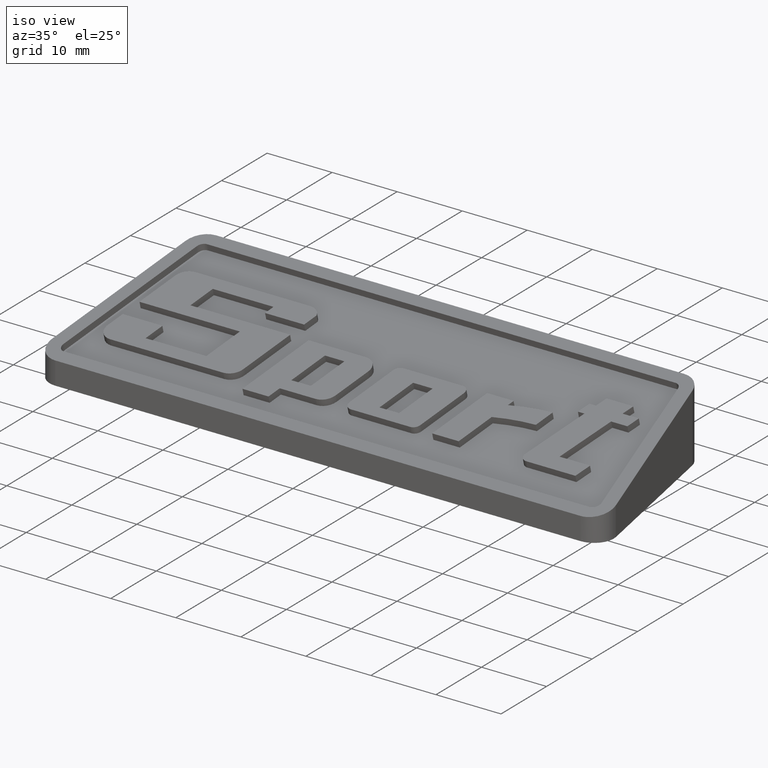
[diagram: clean part render]
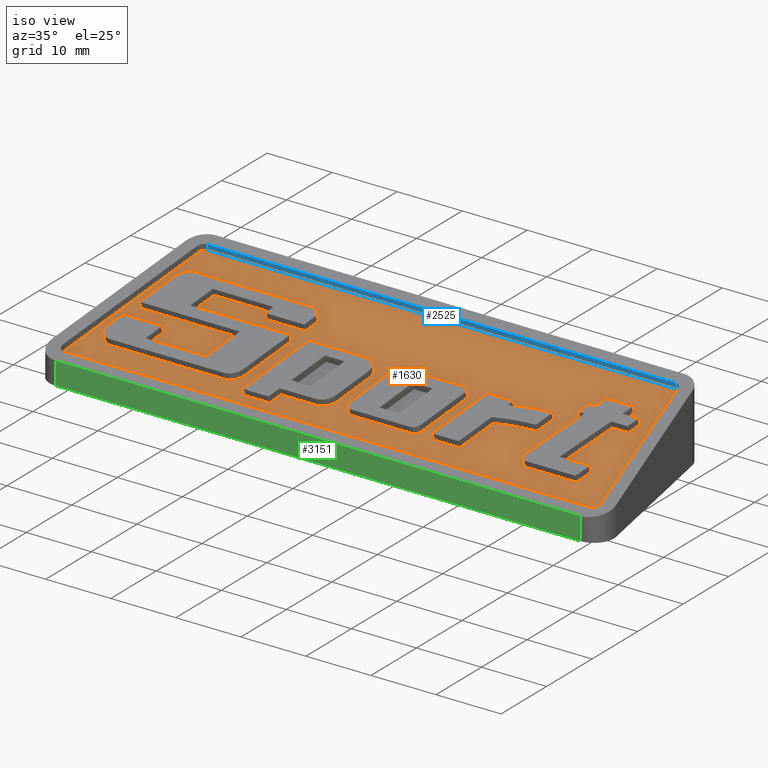
[diagram: same view with three faces highlighted in distinct colors, each labeled with its STEP entity id]
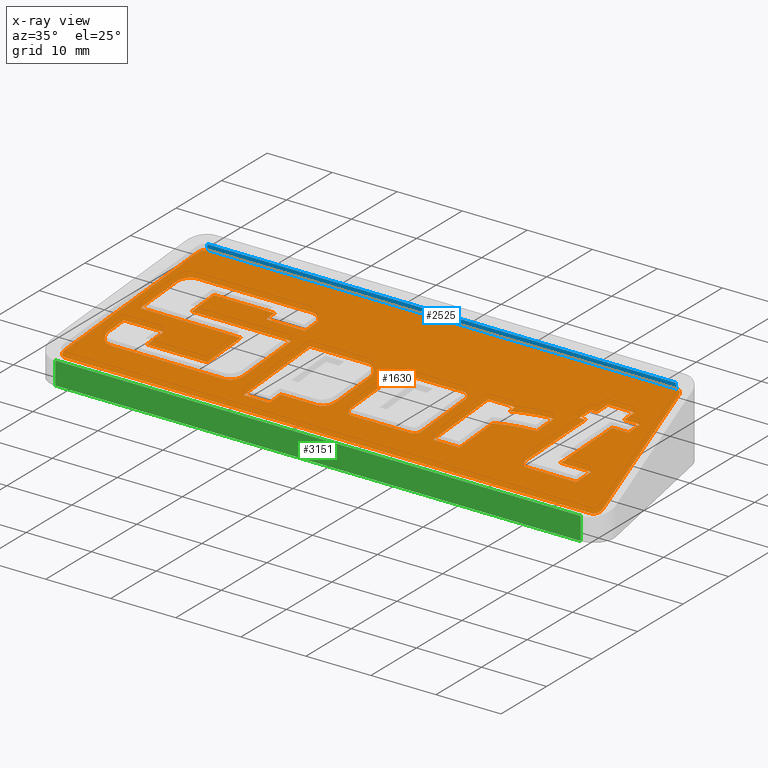
[diagram: x-ray of the same camera — body ghosted, the three highlighted faces saturated]
A machine part, iso view with three faces highlighted in distinct colors.
The next image is the same camera in x-ray (body ghosted, the three faces saturated) — at least one of them is partly hidden behind the body in this view.
Their STEP definitions:

[orange] entity #1630 — the highlighted planar face has unit normal (-0, -0.2504, 0.9681).
#83=CARTESIAN_POINT('',(33.355916242264946,5.013901522582030,7.513797579926376));
#84=VERTEX_POINT('',#83);
#91=CARTESIAN_POINT('',(33.768317386902467,6.756565963482910,7.964486659469705));
#92=VERTEX_POINT('',#91);
#93=CARTESIAN_POINT('',(33.768317386902467,6.756565963482911,7.964486659469706));
#94=DIRECTION('',(-0.223325294542400,-0.943695367031113,-0.244059146645978));
#95=VECTOR('',#94,1.846638758419830);
#96=LINE('',#93,#95);
#97=EDGE_CURVE('',#92,#84,#96,.T.);
#121=CARTESIAN_POINT('',(35.849469093483187,5.013901522582027,7.513797579926375));
#122=VERTEX_POINT('',#121);
#129=CARTESIAN_POINT('',(33.355916242264946,5.013901522582031,7.513797579926374));
#130=DIRECTION('',(1.0,0.0,0.0));
#131=VECTOR('',#130,2.493552851218247);
#132=LINE('',#129,#131);
#133=EDGE_CURVE('',#84,#122,#132,.T.);
#152=CARTESIAN_POINT('',(35.408946311808535,3.125161362457170,7.025330297135463));
#153=VERTEX_POINT('',#152);
#160=CARTESIAN_POINT('',(35.849469093483187,5.013901522582028,7.513797579926374));
#161=DIRECTION('',(-0.220261390837330,-0.944370080062430,-0.244233641395456));
#162=VECTOR('',#161,1.999999999999996);
#163=LINE('',#160,#162);
#164=EDGE_CURVE('',#122,#153,#163,.T.);
#183=CARTESIAN_POINT('',(32.908946311808535,3.125161362457167,7.025330297135463));
#184=VERTEX_POINT('',#183);
#191=CARTESIAN_POINT('',(35.408946311808535,3.125161362457170,7.025330297135462));
#192=DIRECTION('',(-1.0,0.0,0.0));
#193=VECTOR('',#192,2.500000000000000);
#194=LINE('',#191,#193);
#195=EDGE_CURVE('',#153,#184,#194,.T.);
#214=CARTESIAN_POINT('',(30.904420549141918,-5.345270431662110,4.834701384863237));
#215=VERTEX_POINT('',#214);
#222=CARTESIAN_POINT('',(32.908946311808535,3.125161362457166,7.025330297135462));
#223=DIRECTION('',(-0.223325294542399,-0.943695367031113,-0.244059146645977));
#224=VECTOR('',#223,8.975811570175916);
#225=LINE('',#222,#224);
#226=EDGE_CURVE('',#184,#215,#225,.T.);
#245=CARTESIAN_POINT('',(35.599130197475908,-5.345270431662110,4.834701384863238));
#246=VERTEX_POINT('',#245);
#253=CARTESIAN_POINT('',(30.904420549141918,-5.345270431662110,4.834701384863236));
#254=DIRECTION('',(1.0,0.0,0.0));
#255=VECTOR('',#254,4.694709648333998);
#256=LINE('',#253,#255);
#257=EDGE_CURVE('',#215,#246,#256,.T.);
#276=CARTESIAN_POINT('',(35.034612669367803,-7.765637710691113,4.208744329941945));
#277=VERTEX_POINT('',#276);
#284=CARTESIAN_POINT('',(35.599130197475915,-5.345270431662110,4.834701384863237));
#285=DIRECTION('',(-0.220261390837334,-0.944370080062429,-0.244233641395456));
#286=VECTOR('',#285,2.562943627850854);
#287=LINE('',#284,#286);
#288=EDGE_CURVE('',#246,#277,#287,.T.);
#307=CARTESIAN_POINT('',(27.483021664577585,-7.765637710691115,4.208744329941943));
#308=VERTEX_POINT('',#307);
#315=CARTESIAN_POINT('',(35.034612669367803,-7.765637710691113,4.208744329941943));
#316=DIRECTION('',(-1.0,0.0,0.0));
#317=VECTOR('',#316,7.551591004790218);
#318=LINE('',#315,#317);
#319=EDGE_CURVE('',#277,#308,#318,.T.);
#339=CARTESIAN_POINT('',(26.508277691619789,-6.581279104883539,4.515043969374938));
#340=VERTEX_POINT('',#339);
#347=CARTESIAN_POINT('',(27.483021664577585,-6.797490799079514,4.459127151910457));
#348=DIRECTION('',(-7.632783E-017,0.250382821968517,-0.968146911611601));
#349=DIRECTION('',(0.974743972957796,-0.216211694195978,-0.055916817464477));
#350=AXIS2_PLACEMENT_3D('',#347,#348,#349);
#351=CIRCLE('',#350,0.999999999999997);
#352=EDGE_CURVE('',#308,#340,#351,.T.);
#371=CARTESIAN_POINT('',(28.805304626431123,3.125161362457165,7.025330297135462));
#372=VERTEX_POINT('',#371);
#379=CARTESIAN_POINT('',(26.508277691619792,-6.581279104883538,4.515043969374936));
#380=DIRECTION('',(0.223325294542400,0.943695367031113,0.244059146645977));
#381=VECTOR('',#380,10.285565455171607);
#382=LINE('',#379,#381);
#383=EDGE_CURVE('',#340,#372,#382,.T.);
#402=CARTESIAN_POINT('',(27.805304626431131,3.125161362457165,7.025330297135462));
#403=VERTEX_POINT('',#402);
#410=CARTESIAN_POINT('',(28.805304626431123,3.125161362457165,7.025330297135461));
#411=DIRECTION('',(-1.0,0.0,0.0));
#412=VECTOR('',#411,0.999999999999993);
#413=LINE('',#410,#412);
#414=EDGE_CURVE('',#372,#403,#413,.T.);
#433=CARTESIAN_POINT('',(28.245827408105797,5.013901522582025,7.513797579926374));
#434=VERTEX_POINT('',#433);
#441=CARTESIAN_POINT('',(27.805304626431127,3.125161362457166,7.025330297135461));
#442=DIRECTION('',(0.220261390837334,0.944370080062429,0.244233641395455));
#443=VECTOR('',#442,2.000000000000003);
#444=LINE('',#441,#443);
#445=EDGE_CURVE('',#403,#434,#444,.T.);
#464=CARTESIAN_POINT('',(29.252274556887549,5.013901522582025,7.513797579926374));
#465=VERTEX_POINT('',#464);
#472=CARTESIAN_POINT('',(28.245827408105797,5.013901522582026,7.513797579926374));
#473=DIRECTION('',(1.0,0.0,0.0));
#474=VECTOR('',#473,1.006447148781753);
#475=LINE('',#472,#474);
#476=EDGE_CURVE('',#434,#465,#475,.T.);
#495=CARTESIAN_POINT('',(29.664675701525063,6.756565963482910,7.964486659469705));
#496=VERTEX_POINT('',#495);
#503=CARTESIAN_POINT('',(29.252274556887546,5.013901522582025,7.513797579926372));
#504=DIRECTION('',(0.223325294542398,0.943695367031114,0.244059146645978));
#505=VECTOR('',#504,1.846638758419834);
#506=LINE('',#503,#505);
#507=EDGE_CURVE('',#465,#496,#506,.T.);
#525=CARTESIAN_POINT('',(29.664675701525063,6.756565963482910,7.964486659469705));
#526=DIRECTION('',(1.0,0.0,0.0));
#527=VECTOR('',#526,4.103641685377404);
#528=LINE('',#525,#527);
#529=EDGE_CURVE('',#496,#92,#528,.T.);
#573=CARTESIAN_POINT('',(18.894319032140807,1.724806863559947,6.663169650868941));
#574=VERTEX_POINT('',#573);
#581=CARTESIAN_POINT('',(14.827449717303880,1.724806863559945,6.663169650868941));
#582=VERTEX_POINT('',#581);
#583=CARTESIAN_POINT('',(14.827449717303880,1.724806863559945,6.663169650868938));
#584=DIRECTION('',(1.0,0.0,0.0));
#585=VECTOR('',#584,4.066869314836927);
#586=LINE('',#583,#585);
#587=EDGE_CURVE('',#582,#574,#586,.T.);
#611=CARTESIAN_POINT('',(18.710704962697228,0.756659951948344,6.412786828900423));
#612=VERTEX_POINT('',#611);
#619=CARTESIAN_POINT('',(18.894319032140803,1.724806863559947,6.663169650868940));
#620=DIRECTION('',(-0.180595003408356,-0.952228199789522,-0.246265913738669));
#621=VECTOR('',#620,1.016717328709230);
#622=LINE('',#619,#621);
#623=EDGE_CURVE('',#574,#612,#622,.T.);
#643=CARTESIAN_POINT('',(24.894319032140810,1.724806863559947,6.663169650868941));
#644=VERTEX_POINT('',#643);
#651=CARTESIAN_POINT('',(26.190524128178332,-25.028745653742234,-0.255852551881621));
#652=DIRECTION('',(0.0,0.250382821968518,-0.968146911611602));
#653=DIRECTION('',(-0.046855036690151,0.967083595506694,0.250107826424145));
#654=AXIS2_PLACEMENT_3D('',#651,#652,#653);
#655=CIRCLE('',#654,27.664157102452894);
#656=EDGE_CURVE('',#612,#644,#655,.T.);
#675=CARTESIAN_POINT('',(24.343476823810075,-1.179633871274859,5.912021184963389));
#676=VERTEX_POINT('',#675);
#683=CARTESIAN_POINT('',(24.894319032140810,1.724806863559948,6.663169650868939));
#684=DIRECTION('',(-0.180595003408356,-0.952228199789522,-0.246265913738669));
#685=VECTOR('',#684,3.050151986127690);
#686=LINE('',#683,#685);
#687=EDGE_CURVE('',#644,#676,#686,.T.);
#707=CARTESIAN_POINT('',(18.177977150577824,-2.052268511953990,5.686339812373959));
#708=VERTEX_POINT('',#707);
#715=CARTESIAN_POINT('',(25.087996412087055,-26.961832382413753,-0.755788774813912));
#716=DIRECTION('',(-4.336809E-018,-0.250382821968517,0.968146911611601));
#717=DIRECTION('',(0.027946523167849,-0.967768772447082,-0.250285027357004));
#718=AXIS2_PLACEMENT_3D('',#715,#716,#717);
#719=CIRCLE('',#718,26.640866336228747);
#720=EDGE_CURVE('',#676,#708,#719,.T.);
#739=CARTESIAN_POINT('',(17.094407130127671,-7.765637710691121,4.208744329941943));
#740=VERTEX_POINT('',#739);
#747=CARTESIAN_POINT('',(18.177977150577828,-2.052268511953990,5.686339812373956));
#748=DIRECTION('',(-0.180595003408359,-0.952228199789522,-0.246265913738669));
#749=VECTOR('',#748,6.0);
#750=LINE('',#747,#749);
#751=EDGE_CURVE('',#708,#740,#750,.T.);
#770=CARTESIAN_POINT('',(13.027537815290753,-7.765637710691124,4.208744329941942));
#771=VERTEX_POINT('',#770);
#778=CARTESIAN_POINT('',(17.094407130127671,-7.765637710691121,4.208744329941941));
#779=DIRECTION('',(-1.0,0.0,0.0));
#780=VECTOR('',#779,4.066869314836918);
#781=LINE('',#778,#780);
#782=EDGE_CURVE('',#740,#771,#781,.T.);
#800=CARTESIAN_POINT('',(13.027537815290753,-7.765637710691124,4.208744329941940));
#801=DIRECTION('',(0.180595003408357,0.952228199789522,0.246265913738669));
#802=VECTOR('',#801,9.966565342581548);
#803=LINE('',#800,#802);
#804=EDGE_CURVE('',#771,#582,#803,.T.);
#966=CARTESIAN_POINT('',(9.652641234252020,-7.765637710691125,4.208744329941940));
#967=VERTEX_POINT('',#966);
#974=CARTESIAN_POINT('',(10.636198779464268,-6.972333293881810,4.413909265323659));
#975=VERTEX_POINT('',#974);
#976=CARTESIAN_POINT('',(9.652641234252020,-6.797490799079522,4.459127151910457));
#977=DIRECTION('',(5.834002E-018,0.250382821968517,-0.968146911611601));
#978=DIRECTION('',(0.0,0.968146911611601,0.250382821968517));
#979=AXIS2_PLACEMENT_3D('',#976,#977,#978);
#980=CIRCLE('',#979,1.000000000000000);
#981=EDGE_CURVE('',#975,#967,#980,.T.);
#1005=CARTESIAN_POINT('',(0.502185275868960,-7.765637710691128,4.208744329941939));
#1006=VERTEX_POINT('',#1005);
#1013=CARTESIAN_POINT('',(9.652641234252020,-7.765637710691125,4.208744329941941));
#1014=DIRECTION('',(-1.0,0.0,0.0));
#1015=VECTOR('',#1014,9.150455958383059);
#1016=LINE('',#1013,#1015);
#1017=EDGE_CURVE('',#967,#1006,#1016,.T.);
#1037=CARTESIAN_POINT('',(-0.481372269343296,-6.622648304277235,4.504345038497256));
#1038=VERTEX_POINT('',#1037);
#1045=CARTESIAN_POINT('',(0.502185275868960,-6.797490799079526,4.459127151910456));
#1046=DIRECTION('',(6.938894E-018,0.250382821968517,-0.968146911611601));
#1047=DIRECTION('',(0.983557545212244,-0.174842494802288,-0.045217886586799));
#1048=AXIS2_PLACEMENT_3D('',#1045,#1046,#1047);
#1049=CIRCLE('',#1048,1.000000000000000);
#1050=EDGE_CURVE('',#1006,#1038,#1049,.T.);
#1069=CARTESIAN_POINT('',(0.951311493782692,0.931502446750623,6.458004715487218));
#1070=VERTEX_POINT('',#1069);
#1077=CARTESIAN_POINT('',(-0.481372269343296,-6.622648304277234,4.504345038497256));
#1078=DIRECTION('',(0.180595003408359,0.952228199789522,0.246265913738669));
#1079=VECTOR('',#1078,7.933130685163083);
#1080=LINE('',#1077,#1079);
#1081=EDGE_CURVE('',#1038,#1070,#1080,.T.);
#1101=CARTESIAN_POINT('',(1.934869038994931,1.724806863559938,6.663169650868936));
#1102=VERTEX_POINT('',#1101);
#1109=CARTESIAN_POINT('',(1.934869038994931,0.756659951948335,6.412786828900419));
#1110=DIRECTION('',(5.834002E-018,0.250382821968517,-0.968146911611601));
#1111=DIRECTION('',(0.0,-0.968146911611601,-0.250382821968517));
#1112=AXIS2_PLACEMENT_3D('',#1109,#1110,#1111);
#1113=CIRCLE('',#1112,1.000000000000000);
#1114=EDGE_CURVE('',#1070,#1102,#1113,.T.);
#1133=CARTESIAN_POINT('',(11.085324997377990,1.724806863559942,6.663169650868939));
#1134=VERTEX_POINT('',#1133);
#1141=CARTESIAN_POINT('',(1.934869038994931,1.724806863559938,6.663169650868936));
#1142=DIRECTION('',(1.0,0.0,0.0));
#1143=VECTOR('',#1142,9.150455958383059);
#1144=LINE('',#1141,#1143);
#1145=EDGE_CURVE('',#1102,#1134,#1144,.T.);
#1165=CARTESIAN_POINT('',(12.068882542590247,0.581817457146048,6.367568942313621));
#1166=VERTEX_POINT('',#1165);
#1173=CARTESIAN_POINT('',(11.085324997377990,0.756659951948340,6.412786828900421));
#1174=DIRECTION('',(6.938894E-018,0.250382821968517,-0.968146911611601));
#1175=DIRECTION('',(-0.983557545212244,0.174842494802289,0.045217886586799));
#1176=AXIS2_PLACEMENT_3D('',#1173,#1174,#1175);
#1177=CIRCLE('',#1176,1.000000000000000);
#1178=EDGE_CURVE('',#1134,#1166,#1177,.T.);
#1196=CARTESIAN_POINT('',(12.068882542590249,0.581817457146048,6.367568942313620));
#1197=DIRECTION('',(-0.180595003408358,-0.952228199789522,-0.246265913738669));
#1198=VECTOR('',#1197,7.933130685163086);
#1199=LINE('',#1196,#1198);
#1200=EDGE_CURVE('',#1166,#975,#1199,.T.);
#1228=CARTESIAN_POINT('',(-1.202906E-014,-0.276969190969460,6.145468947111334));
#1229=DIRECTION('',(-5.834002E-018,-0.250382821968517,0.968146911611601));
#1230=DIRECTION('',(1.0,0.0,0.0));
#1231=AXIS2_PLACEMENT_3D('',#1228,#1229,#1230);
#1232=PLANE('',#1231);
#1233=CARTESIAN_POINT('',(36.015488522107844,12.814088998745321,9.531087444451362));
#1234=VERTEX_POINT('',#1233);
#1235=CARTESIAN_POINT('',(-36.015488522107837,12.814088998745316,9.531087444451361));
#1236=VERTEX_POINT('',#1235);
#1237=CARTESIAN_POINT('',(36.015488522107844,12.814088998745319,9.531087444451366));
#1238=DIRECTION('',(-1.0,0.0,0.0));
#1239=VECTOR('',#1238,72.030977044215689);
#1240=LINE('',#1237,#1239);
#1241=EDGE_CURVE('',#1234,#1236,#1240,.T.);
#1242=ORIENTED_EDGE('',*,*,#1241,.T.);
#1243=CARTESIAN_POINT('',(-36.995833004604222,11.959698785848936,9.310124458357469));
#1244=VERTEX_POINT('',#1243);
#1245=CARTESIAN_POINT('',(-36.015488522107873,12.814088998745316,9.531087444451364));
#1246=CARTESIAN_POINT('',(-36.051386817572244,12.814088998745316,9.531087444451364));
#1247=CARTESIAN_POINT('',(-36.123183088354800,12.809952318777489,9.530017613425203));
#1248=CARTESIAN_POINT('',(-36.212261421107208,12.794416014274081,9.525999603639837));
#1249=CARTESIAN_POINT('',(-36.300288665395527,12.771066290713726,9.519960882029400));
#1250=CARTESIAN_POINT('',(-36.369630261689771,12.746115615818830,9.513508121280719));
#1251=CARTESIAN_POINT('',(-36.454278702084018,12.707072650896345,9.503410802766284));
#1252=CARTESIAN_POINT('',(-36.520071944507364,12.669559667978213,9.493709169252973));
#1253=CARTESIAN_POINT('',(-36.599075235844680,12.614922071967545,9.479578756491595));
#1254=CARTESIAN_POINT('',(-36.659323653404392,12.565088427363902,9.466690744956171));
#1255=CARTESIAN_POINT('',(-36.729994436604215,12.495458786096041,9.448683079111035));
#1256=CARTESIAN_POINT('',(-36.782422478244563,12.434062881533642,9.432804827931104));
#1257=CARTESIAN_POINT('',(-36.841848679412770,12.350800975338036,9.411271576328792));
#1258=CARTESIAN_POINT('',(-36.884117306503342,12.279278057793221,9.392774270067200));
#1259=CARTESIAN_POINT('',(-36.929479223875823,12.184628670517878,9.368295980254612));
#1260=CARTESIAN_POINT('',(-36.966964517377647,12.085257218624079,9.342596466833802));
#1261=CARTESIAN_POINT('',(-36.987818960189848,12.001954656397666,9.321052700740765));
#1262=CARTESIAN_POINT('',(-36.995833004604258,11.959698785848936,9.310124458357473));
#1263=B_SPLINE_CURVE_WITH_KNOTS('',3,(#1245,#1246,#1247,#1248,#1249,#1250,#1251,#1252,#1253,#1254,#1255,#1256,#1257,#1258,#1259,#1260,#1261,#1262),.UNSPECIFIED.,.F.,.U.,(4,1,1,1,1,1,1,1,1,1,1,1,1,1,1,4),(0.0,0.115280601195935,0.230561202391870,0.288201502989838,0.403482104185773,0.461122404783741,0.576403005979676,0.634043306577643,0.749323907773578,0.806964208371546,0.922244809567481,0.979885110165449,1.095165711361384,1.152806011959352,1.268086613155287,1.383367214351222),.UNSPECIFIED.);
#1264=EDGE_CURVE('',#1236,#1244,#1263,.T.);
#1265=ORIENTED_EDGE('',*,*,#1264,.T.);
#1266=CARTESIAN_POINT('',(-41.357901970121461,-11.040301214151075,3.361848596288505));
#1267=VERTEX_POINT('',#1266);
#1268=CARTESIAN_POINT('',(-36.995833004604258,11.959698785848937,9.310124458357473));
#1269=DIRECTION('',(-0.180595003408357,-0.952228199789522,-0.246265913738669));
#1270=VECTOR('',#1269,24.153874045196176);
#1271=LINE('',#1268,#1270);
#1272=EDGE_CURVE('',#1244,#1267,#1271,.T.);
#1273=ORIENTED_EDGE('',*,*,#1272,.T.);
#1274=CARTESIAN_POINT('',(-40.377557487625083,-12.313323354808281,3.032618732325435));
#1275=VERTEX_POINT('',#1274);
#1276=CARTESIAN_POINT('',(-41.357901970121496,-11.040301214151080,3.361848596288502));
#1277=CARTESIAN_POINT('',(-41.368087621924161,-11.094007378201511,3.347959071103046));
#1278=CARTESIAN_POINT('',(-41.380654671579165,-11.203378599438604,3.319673410438280));
#1279=CARTESIAN_POINT('',(-41.376184060807624,-11.341174795139487,3.284036463274258));
#1280=CARTESIAN_POINT('',(-41.356741417503748,-11.476887908115629,3.248938244401118));
#1281=CARTESIAN_POINT('',(-41.329450923900438,-11.582646788237607,3.221586809886814));
#1282=CARTESIAN_POINT('',(-41.281690072750628,-11.708701266865532,3.188986513689937));
#1283=CARTESIAN_POINT('',(-41.233139109069441,-11.803663990842573,3.164427188523461));
#1284=CARTESIAN_POINT('',(-41.161204401565968,-11.912974215389971,3.136157302864651));
#1285=CARTESIAN_POINT('',(-41.095439767890689,-11.992234770205336,3.115658883515850));
#1286=CARTESIAN_POINT('',(-41.004948681104352,-12.079795480421856,3.093013872252956));
#1287=CARTESIAN_POINT('',(-40.926747313165933,-12.140282005189597,3.077370805502678));
#1288=CARTESIAN_POINT('',(-40.823642118371410,-12.203378989170190,3.061052619990456));
#1289=CARTESIAN_POINT('',(-40.737588268603240,-12.243756971137948,3.050610038447070));
#1290=CARTESIAN_POINT('',(-40.627123081480278,-12.281528371771584,3.040841572765958));
#1291=CARTESIAN_POINT('',(-40.514434252491718,-12.306643360855922,3.034346316968284));
#1292=CARTESIAN_POINT('',(-40.423183331331671,-12.313323354808286,3.032618732325432));
#1293=CARTESIAN_POINT('',(-40.377557487625126,-12.313323354808286,3.032618732325432));
#1294=B_SPLINE_CURVE_WITH_KNOTS('',3,(#1276,#1277,#1278,#1279,#1280,#1281,#1282,#1283,#1284,#1285,#1286,#1287,#1288,#1289,#1290,#1291,#1292,#1293),.UNSPECIFIED.,.F.,.U.,(4,1,1,1,1,1,1,1,1,1,1,1,1,1,1,4),(1.383367214351221,1.529886000954436,1.676404787557650,1.749664180859258,1.896182967462472,1.969442360764079,2.115961147367293,2.189220540668900,2.335739327272115,2.408998720573722,2.555517507176936,2.628776900478543,2.775295687081758,2.848555080383365,2.995073866986579,3.141592653589794),.UNSPECIFIED.);
#1295=EDGE_CURVE('',#1267,#1275,#1294,.T.);
#1296=ORIENTED_EDGE('',*,*,#1295,.T.);
#1297=CARTESIAN_POINT('',(40.377557487625083,-12.313323354808274,3.032618732325436));
#1298=VERTEX_POINT('',#1297);
#1299=CARTESIAN_POINT('',(-40.377557487625083,-12.313323354808286,3.032618732325431));
#1300=DIRECTION('',(1.0,0.0,0.0));
#1301=VECTOR('',#1300,80.755114975250166);
#1302=LINE('',#1299,#1301);
#1303=EDGE_CURVE('',#1275,#1298,#1302,.T.);
#1304=ORIENTED_EDGE('',*,*,#1303,.T.);
#1305=CARTESIAN_POINT('',(41.357901970121453,-11.040301214151070,3.361848596288506));
#1306=VERTEX_POINT('',#1305);
#1307=CARTESIAN_POINT('',(40.377557487625083,-12.313323354808279,3.032618732325433));
#1308=CARTESIAN_POINT('',(40.423183331331657,-12.313323354808279,3.032618732325433));
#1309=CARTESIAN_POINT('',(40.514434252491625,-12.306643360855919,3.034346316968285));
#1310=CARTESIAN_POINT('',(40.627123081480207,-12.281528371771579,3.040841572765959));
#1311=CARTESIAN_POINT('',(40.737588268603204,-12.243756971137946,3.050610038447071));
#1312=CARTESIAN_POINT('',(40.823642118371382,-12.203378989170186,3.061052619990457));
#1313=CARTESIAN_POINT('',(40.926747313165812,-12.140282005189594,3.077370805502679));
#1314=CARTESIAN_POINT('',(41.004948681104224,-12.079795480421851,3.093013872252958));
#1315=CARTESIAN_POINT('',(41.095439767890682,-11.992234770205330,3.115658883515851));
#1316=CARTESIAN_POINT('',(41.161204401565925,-11.912974215389966,3.136157302864651));
#1317=CARTESIAN_POINT('',(41.233139109069455,-11.803663990842564,3.164427188523463));
#1318=CARTESIAN_POINT('',(41.281690072750635,-11.708701266865521,3.188986513689939));
#1319=CARTESIAN_POINT('',(41.329450923900417,-11.582646788237605,3.221586809886814));
#1320=CARTESIAN_POINT('',(41.356741417503713,-11.476887908115627,3.248938244401119));
#1321=CARTESIAN_POINT('',(41.376184060807617,-11.341174795139484,3.284036463274259));
#1322=CARTESIAN_POINT('',(41.380654671579151,-11.203378599438601,3.319673410438281));
#1323=CARTESIAN_POINT('',(41.368087621924126,-11.094007378201509,3.347959071103046));
#1324=CARTESIAN_POINT('',(41.357901970121453,-11.040301214151073,3.361848596288504));
#1325=B_SPLINE_CURVE_WITH_KNOTS('',3,(#1307,#1308,#1309,#1310,#1311,#1312,#1313,#1314,#1315,#1316,#1317,#1318,#1319,#1320,#1321,#1322,#1323,#1324),.UNSPECIFIED.,.F.,.U.,(4,1,1,1,1,1,1,1,1,1,1,1,1,1,1,4),(0.0,0.146518786603214,0.293037573206428,0.366296966508035,0.512815753111250,0.586075146412857,0.732593933016071,0.805853326317678,0.952372112920892,1.025631506222499,1.172150292825713,1.245409686127321,1.391928472730535,1.465187866032142,1.611706652635356,1.758225439238570),.UNSPECIFIED.);
#1326=EDGE_CURVE('',#1298,#1306,#1325,.T.);
#1327=ORIENTED_EDGE('',*,*,#1326,.T.);
#1328=CARTESIAN_POINT('',(36.995833004604215,11.959698785848950,9.310124458357473));
#1329=VERTEX_POINT('',#1328);
#1330=CARTESIAN_POINT('',(41.357901970121453,-11.040301214151068,3.361848596288504));
#1331=DIRECTION('',(-0.180595003408357,0.952228199789522,0.246265913738669));
#1332=VECTOR('',#1331,24.153874045196183);
#1333=LINE('',#1330,#1332);
#1334=EDGE_CURVE('',#1306,#1329,#1333,.T.);
#1335=ORIENTED_EDGE('',*,*,#1334,.T.);
#1336=CARTESIAN_POINT('',(36.995833004604215,11.959698785848950,9.310124458357475));
#1337=CARTESIAN_POINT('',(36.987818960189777,12.001954656397658,9.321052700740763));
#1338=CARTESIAN_POINT('',(36.966964517377576,12.085257218624079,9.342596466833802));
#1339=CARTESIAN_POINT('',(36.929479223875731,12.184628670517871,9.368295980254610));
#1340=CARTESIAN_POINT('',(36.884117306503406,12.279278057793235,9.392774270067205));
#1341=CARTESIAN_POINT('',(36.841848679412834,12.350800975338046,9.411271576328794));
#1342=CARTESIAN_POINT('',(36.782422478244555,12.434062881533684,9.432804827931115));
#1343=CARTESIAN_POINT('',(36.729994436604194,12.495458786096085,9.448683079111046));
#1344=CARTESIAN_POINT('',(36.659323653404421,12.565088427363907,9.466690744956171));
#1345=CARTESIAN_POINT('',(36.599075235844708,12.614922071967563,9.479578756491598));
#1346=CARTESIAN_POINT('',(36.520071944507421,12.669559667978184,9.493709169252968));
#1347=CARTESIAN_POINT('',(36.454278702084075,12.707072650896309,9.503410802766275));
#1348=CARTESIAN_POINT('',(36.369630261689707,12.746115615818860,9.513508121280728));
#1349=CARTESIAN_POINT('',(36.300288665395477,12.771066290713753,9.519960882029409));
#1350=CARTESIAN_POINT('',(36.212261421107179,12.794416014274091,9.525999603639839));
#1351=CARTESIAN_POINT('',(36.123183088354764,12.809952318777507,9.530017613425207));
#1352=CARTESIAN_POINT('',(36.051386817572215,12.814088998745321,9.531087444451364));
#1353=CARTESIAN_POINT('',(36.015488522107844,12.814088998745321,9.531087444451364));
#1354=B_SPLINE_CURVE_WITH_KNOTS('',3,(#1336,#1337,#1338,#1339,#1340,#1341,#1342,#1343,#1344,#1345,#1346,#1347,#1348,#1349,#1350,#1351,#1352,#1353),.UNSPECIFIED.,.F.,.U.,(4,1,1,1,1,1,1,1,1,1,1,1,1,1,1,4),(4.899818092828363,5.015098694024299,5.130379295220234,5.188019595818201,5.303300197014136,5.360940497612105,5.476221098808040,5.533861399406007,5.649142000601942,5.706782301199911,5.822062902395846,5.879703202993813,5.994983804189748,6.052624104787717,6.167904705983652,6.283185307179589),.UNSPECIFIED.);
#1355=EDGE_CURVE('',#1329,#1234,#1354,.T.);
#1356=ORIENTED_EDGE('',*,*,#1355,.T.);
#1357=EDGE_LOOP('',(#1242,#1265,#1273,#1296,#1304,#1327,#1335,#1356));
#1358=FACE_OUTER_BOUND('',#1357,.T.);
#1359=ORIENTED_EDGE('',*,*,#97,.T.);
#1360=ORIENTED_EDGE('',*,*,#133,.T.);
#1361=ORIENTED_EDGE('',*,*,#164,.T.);
#1362=ORIENTED_EDGE('',*,*,#195,.T.);
#1363=ORIENTED_EDGE('',*,*,#226,.T.);
#1364=ORIENTED_EDGE('',*,*,#257,.T.);
#1365=ORIENTED_EDGE('',*,*,#288,.T.);
#1366=ORIENTED_EDGE('',*,*,#319,.T.);
#1367=ORIENTED_EDGE('',*,*,#352,.T.);
#1368=ORIENTED_EDGE('',*,*,#383,.T.);
#1369=ORIENTED_EDGE('',*,*,#414,.T.);
#1370=ORIENTED_EDGE('',*,*,#445,.T.);
#1371=ORIENTED_EDGE('',*,*,#476,.T.);
#1372=ORIENTED_EDGE('',*,*,#507,.T.);
#1373=ORIENTED_EDGE('',*,*,#529,.T.);
#1374=EDGE_LOOP('',(#1359,#1360,#1361,#1362,#1363,#1364,#1365,#1366,#1367,#1368,#1369,#1370,#1371,#1372,#1373));
#1375=FACE_BOUND('',#1374,.T.);
#1376=ORIENTED_EDGE('',*,*,#587,.T.);
#1377=ORIENTED_EDGE('',*,*,#623,.T.);
#1378=ORIENTED_EDGE('',*,*,#656,.T.);
#1379=ORIENTED_EDGE('',*,*,#687,.T.);
#1380=ORIENTED_EDGE('',*,*,#720,.T.);
#1381=ORIENTED_EDGE('',*,*,#751,.T.);
#1382=ORIENTED_EDGE('',*,*,#782,.T.);
#1383=ORIENTED_EDGE('',*,*,#804,.T.);
#1384=EDGE_LOOP('',(#1376,#1377,#1378,#1379,#1380,#1381,#1382,#1383));
#1385=FACE_BOUND('',#1384,.T.);
#1386=CARTESIAN_POINT('',(-12.623918157845315,1.724806863559936,6.663169650868936));
#1387=VERTEX_POINT('',#1386);
#1388=CARTESIAN_POINT('',(-3.840690338349404,1.724806863559938,6.663169650868936));
#1389=VERTEX_POINT('',#1388);
#1390=CARTESIAN_POINT('',(-12.623918157845315,1.724806863559932,6.663169650868936));
#1391=DIRECTION('',(1.0,0.0,0.0));
#1392=VECTOR('',#1391,8.783227819495911);
#1393=LINE('',#1390,#1392);
#1394=EDGE_CURVE('',#1387,#1389,#1393,.T.);
#1395=ORIENTED_EDGE('',*,*,#1394,.T.);
#1396=CARTESIAN_POINT('',(-1.873575247924917,-0.561171949267838,6.071968233758305));
#1397=VERTEX_POINT('',#1396);
#1398=CARTESIAN_POINT('',(-3.840690338349404,-0.211486959663265,6.162404006931902));
#1399=DIRECTION('',(-6.245005E-017,0.250382821968517,-0.968146911611601));
#1400=DIRECTION('',(-0.983557545212244,0.174842494802287,0.045217886586799));
#1401=AXIS2_PLACEMENT_3D('',#1398,#1399,#1400);
#1402=CIRCLE('',#1401,1.999999999999999);
#1403=EDGE_CURVE('',#1389,#1397,#1402,.T.);
#1404=ORIENTED_EDGE('',*,*,#1403,.T.);
#1405=CARTESIAN_POINT('',(-2.939030872163730,-6.179028877072498,4.619074200705377));
#1406=VERTEX_POINT('',#1405);
#1407=CARTESIAN_POINT('',(-1.873575247924917,-0.561171949267838,6.071968233758306));
#1408=DIRECTION('',(-0.180595003408358,-0.952228199789522,-0.246265913738669));
#1409=VECTOR('',#1408,5.899696027744627);
#1410=LINE('',#1407,#1409);
#1411=EDGE_CURVE('',#1397,#1406,#1410,.T.);
#1412=ORIENTED_EDGE('',*,*,#1411,.T.);
#1413=CARTESIAN_POINT('',(-4.906145962588218,-7.765637710691125,4.208744329941940));
#1414=VERTEX_POINT('',#1413);
#1415=CARTESIAN_POINT('',(-4.906145962588218,-5.829343887467921,4.709509973878973));
#1416=DIRECTION('',(5.834002E-018,0.250382821968518,-0.968146911611601));
#1417=DIRECTION('',(0.0,0.968146911611601,0.250382821968518));
#1418=AXIS2_PLACEMENT_3D('',#1415,#1416,#1417);
#1419=CIRCLE('',#1418,1.999999999999995);
#1420=EDGE_CURVE('',#1406,#1414,#1419,.T.);
#1421=ORIENTED_EDGE('',*,*,#1420,.T.);
#1422=CARTESIAN_POINT('',(-10.423830059858457,-7.765637710691125,4.208744329941940));
#1423=VERTEX_POINT('',#1422);
#1424=CARTESIAN_POINT('',(-4.906145962588218,-7.765637710691127,4.208744329941939));
#1425=DIRECTION('',(-1.0,0.0,0.0));
#1426=VECTOR('',#1425,5.517684097270239);
#1427=LINE('',#1424,#1426);
#1428=EDGE_CURVE('',#1414,#1423,#1427,.T.);
#1429=ORIENTED_EDGE('',*,*,#1428,.T.);
#1430=CARTESIAN_POINT('',(-10.791058198745610,-9.701931533914328,3.707978686004905));
#1431=VERTEX_POINT('',#1430);
#1432=CARTESIAN_POINT('',(-10.423830059858458,-7.765637710691125,4.208744329941940));
#1433=DIRECTION('',(-0.180595003408354,-0.952228199789523,-0.246265913738669));
#1434=VECTOR('',#1433,2.033434657418458);
#1435=LINE('',#1432,#1434);
#1436=EDGE_CURVE('',#1423,#1431,#1435,.T.);
#1437=ORIENTED_EDGE('',*,*,#1436,.T.);
#1438=CARTESIAN_POINT('',(-14.791058198745608,-9.701931533914328,3.707978686004905));
#1439=VERTEX_POINT('',#1438);
#1440=CARTESIAN_POINT('',(-10.791058198745608,-9.701931533914328,3.707978686004906));
#1441=DIRECTION('',(-1.0,0.0,0.0));
#1442=VECTOR('',#1441,4.0);
#1443=LINE('',#1440,#1442);
#1444=EDGE_CURVE('',#1431,#1439,#1443,.T.);
#1445=ORIENTED_EDGE('',*,*,#1444,.T.);
#1446=CARTESIAN_POINT('',(-14.791058198745610,-9.701931533914332,3.707978686004904));
#1447=DIRECTION('',(0.180595003408358,0.952228199789522,0.246265913738669));
#1448=VECTOR('',#1447,12.000000000000005);
#1449=LINE('',#1446,#1448);
#1450=EDGE_CURVE('',#1439,#1387,#1449,.T.);
#1451=ORIENTED_EDGE('',*,*,#1450,.T.);
#1452=EDGE_LOOP('',(#1395,#1404,#1412,#1421,#1429,#1437,#1445,#1451));
#1453=FACE_BOUND('',#1452,.T.);
#1454=CARTESIAN_POINT('',(-31.721264914306538,-3.115927694498069,5.411255541026350));
#1455=VERTEX_POINT('',#1454);
#1456=CARTESIAN_POINT('',(-32.272107122637273,-6.020368429332869,4.660107075120799));
#1457=VERTEX_POINT('',#1456);
#1458=CARTESIAN_POINT('',(-31.721264914306538,-3.115927694498070,5.411255541026350));
#1459=DIRECTION('',(-0.180595003408357,-0.952228199789522,-0.246265913738669));
#1460=VECTOR('',#1459,3.050151986127686);
#1461=LINE('',#1458,#1460);
#1462=EDGE_CURVE('',#1455,#1457,#1461,.T.);
#1463=ORIENTED_EDGE('',*,*,#1462,.T.);
#1464=CARTESIAN_POINT('',(-22.939639233779793,-6.020368429332869,4.660107075120799));
#1465=VERTEX_POINT('',#1464);
#1466=CARTESIAN_POINT('',(-32.272107122637273,-6.020368429332871,4.660107075120799));
#1467=DIRECTION('',(1.0,0.0,0.0));
#1468=VECTOR('',#1467,9.332467888857480);
#1469=LINE('',#1466,#1468);
#1470=EDGE_CURVE('',#1457,#1465,#1469,.T.);
#1471=ORIENTED_EDGE('',*,*,#1470,.T.);
#1472=CARTESIAN_POINT('',(-21.837954817118323,-0.211486959663263,6.162404006931903));
#1473=VERTEX_POINT('',#1472);
#1474=CARTESIAN_POINT('',(-22.939639233779790,-6.020368429332872,4.660107075120799));
#1475=DIRECTION('',(0.180595003408358,0.952228199789522,0.246265913738669));
#1476=VECTOR('',#1475,6.100303972255378);
#1477=LINE('',#1474,#1476);
#1478=EDGE_CURVE('',#1465,#1473,#1477,.T.);
#1479=ORIENTED_EDGE('',*,*,#1478,.T.);
#1480=CARTESIAN_POINT('',(-37.270726678231178,-0.211486959663267,6.162404006931902));
#1481=VERTEX_POINT('',#1480);
#1482=CARTESIAN_POINT('',(-21.837954817118323,-0.211486959663263,6.162404006931902));
#1483=DIRECTION('',(-1.0,0.0,0.0));
#1484=VECTOR('',#1483,15.432771861112855);
#1485=LINE('',#1482,#1484);
#1486=EDGE_CURVE('',#1473,#1481,#1485,.T.);
#1487=ORIENTED_EDGE('',*,*,#1486,.T.);
#1488=CARTESIAN_POINT('',(-36.102722694575732,5.947079499610917,7.755136711916602));
#1489=VERTEX_POINT('',#1488);
#1490=CARTESIAN_POINT('',(-37.270726678231178,-0.211486959663267,6.162404006931902));
#1491=DIRECTION('',(0.180595003408357,0.952228199789522,0.246265913738669));
#1492=VECTOR('',#1491,6.467532111142536);
#1493=LINE('',#1490,#1492);
#1494=EDGE_CURVE('',#1481,#1489,#1493,.T.);
#1495=ORIENTED_EDGE('',*,*,#1494,.T.);
#1496=CARTESIAN_POINT('',(-34.135607604151240,7.533688333229542,8.165466582680040));
#1497=VERTEX_POINT('',#1496);
#1498=CARTESIAN_POINT('',(-34.135607604151240,5.597394510006342,7.664700938743005));
#1499=DIRECTION('',(5.834002E-018,0.250382821968517,-0.968146911611601));
#1500=DIRECTION('',(0.0,0.968146911611601,0.250382821968517));
#1501=AXIS2_PLACEMENT_3D('',#1498,#1499,#1500);
#1502=CIRCLE('',#1501,2.000000000000002);
#1503=EDGE_CURVE('',#1489,#1497,#1502,.T.);
#1504=ORIENTED_EDGE('',*,*,#1503,.T.);
#1505=CARTESIAN_POINT('',(-16.461801297689767,7.533688333229542,8.165466582680040));
#1506=VERTEX_POINT('',#1505);
#1507=CARTESIAN_POINT('',(-34.135607604151240,7.533688333229543,8.165466582680041));
#1508=DIRECTION('',(1.0,0.0,0.0));
#1509=VECTOR('',#1508,17.673806306461472);
#1510=LINE('',#1507,#1509);
#1511=EDGE_CURVE('',#1497,#1506,#1510,.T.);
#1512=ORIENTED_EDGE('',*,*,#1511,.T.);
#1513=CARTESIAN_POINT('',(-14.601453769201003,6.308245838446256,7.848541799546433));
#1514=VERTEX_POINT('',#1513);
#1515=CARTESIAN_POINT('',(-16.461801297689767,5.597394510006346,7.664700938743007));
#1516=DIRECTION('',(-6.938894E-017,0.250382821968517,-0.968146911611601));
#1517=DIRECTION('',(0.930173764244384,0.355425664219956,0.091920430401713));
#1518=AXIS2_PLACEMENT_3D('',#1515,#1516,#1517);
#1519=CIRCLE('',#1518,2.000000000000002);
#1520=EDGE_CURVE('',#1506,#1514,#1519,.T.);
#1521=ORIENTED_EDGE('',*,*,#1520,.T.);
#1522=CARTESIAN_POINT('',(-15.011691504622213,4.145174142588941,7.289126705790229));
#1523=VERTEX_POINT('',#1522);
#1524=CARTESIAN_POINT('',(-14.601453769201006,6.308245838446257,7.848541799546432));
#1525=DIRECTION('',(-0.180595003408356,-0.952228199789522,-0.246265913738670));
#1526=VECTOR('',#1525,2.271589621411585);
#1527=LINE('',#1524,#1526);
#1528=EDGE_CURVE('',#1514,#1523,#1527,.T.);
#1529=ORIENTED_EDGE('',*,*,#1528,.T.);
#1530=CARTESIAN_POINT('',(-21.011691504622213,4.145174142588939,7.289126705790229));
#1531=VERTEX_POINT('',#1530);
#1532=CARTESIAN_POINT('',(-15.011691504622213,4.145174142588942,7.289126705790230));
#1533=DIRECTION('',(-1.0,0.0,0.0));
#1534=VECTOR('',#1533,6.0);
#1535=LINE('',#1532,#1534);
#1536=EDGE_CURVE('',#1523,#1531,#1535,.T.);
#1537=ORIENTED_EDGE('',*,*,#1536,.T.);
#1538=CARTESIAN_POINT('',(-20.736270400456842,5.597394510006342,7.664700938743005));
#1539=VERTEX_POINT('',#1538);
#1540=CARTESIAN_POINT('',(-21.011691504622210,4.145174142588939,7.289126705790229));
#1541=DIRECTION('',(0.180595003408359,0.952228199789522,0.246265913738669));
#1542=VECTOR('',#1541,1.525075993063846);
#1543=LINE('',#1540,#1542);
#1544=EDGE_CURVE('',#1531,#1539,#1543,.T.);
#1545=ORIENTED_EDGE('',*,*,#1544,.T.);
#1546=CARTESIAN_POINT('',(-30.068738289314325,5.597394510006342,7.664700938743005));
#1547=VERTEX_POINT('',#1546);
#1548=CARTESIAN_POINT('',(-20.736270400456842,5.597394510006343,7.664700938743007));
#1549=DIRECTION('',(-1.0,0.0,0.0));
#1550=VECTOR('',#1549,9.332467888857483);
#1551=LINE('',#1548,#1550);
#1552=EDGE_CURVE('',#1539,#1547,#1551,.T.);
#1553=ORIENTED_EDGE('',*,*,#1552,.T.);
#1554=CARTESIAN_POINT('',(-30.803194567088642,1.724806863559936,6.663169650868936));
#1555=VERTEX_POINT('',#1554);
#1556=CARTESIAN_POINT('',(-30.068738289314329,5.597394510006343,7.664700938743007));
#1557=DIRECTION('',(-0.180595003408357,-0.952228199789522,-0.246265913738669));
#1558=VECTOR('',#1557,4.066869314836920);
#1559=LINE('',#1556,#1558);
#1560=EDGE_CURVE('',#1547,#1555,#1559,.T.);
#1561=ORIENTED_EDGE('',*,*,#1560,.T.);
#1562=CARTESIAN_POINT('',(-15.470726678231159,1.724806863559936,6.663169650868936));
#1563=VERTEX_POINT('',#1562);
#1564=CARTESIAN_POINT('',(-30.803194567088646,1.724806863559936,6.663169650868936));
#1565=DIRECTION('',(1.0,0.0,0.0));
#1566=VECTOR('',#1565,15.332467888857487);
#1567=LINE('',#1564,#1566);
#1568=EDGE_CURVE('',#1555,#1563,#1567,.T.);
#1569=ORIENTED_EDGE('',*,*,#1568,.T.);
#1570=CARTESIAN_POINT('',(-16.974490887650951,-6.204131695198973,4.612582092569221));
#1571=VERTEX_POINT('',#1570);
#1572=CARTESIAN_POINT('',(-15.470726678231161,1.724806863559936,6.663169650868936));
#1573=DIRECTION('',(-0.180595003408357,-0.952228199789522,-0.246265913738669));
#1574=VECTOR('',#1573,8.326721011320084);
#1575=LINE('',#1572,#1574);
#1576=EDGE_CURVE('',#1563,#1571,#1575,.T.);
#1577=ORIENTED_EDGE('',*,*,#1576,.T.);
#1578=CARTESIAN_POINT('',(-18.965463624318055,-7.956662252556072,4.159341431183764));
#1579=VERTEX_POINT('',#1578);
#1580=CARTESIAN_POINT('',(-18.965463624318055,-6.020368429332869,4.660107075120799));
#1581=DIRECTION('',(5.834002E-018,0.250382821968517,-0.968146911611602));
#1582=DIRECTION('',(0.0,-0.968146911611601,-0.250382821968517));
#1583=AXIS2_PLACEMENT_3D('',#1580,#1581,#1582);
#1584=CIRCLE('',#1583,2.000000000000006);
#1585=EDGE_CURVE('',#1571,#1579,#1584,.T.);
#1586=ORIENTED_EDGE('',*,*,#1585,.T.);
#1587=CARTESIAN_POINT('',(-36.351587322384972,-7.956662252556077,4.159341431183763));
#1588=VERTEX_POINT('',#1587);
#1589=CARTESIAN_POINT('',(-18.965463624318055,-7.956662252556073,4.159341431183764));
#1590=DIRECTION('',(-1.0,0.0,0.0));
#1591=VECTOR('',#1590,17.386123698066918);
#1592=LINE('',#1589,#1591);
#1593=EDGE_CURVE('',#1579,#1588,#1592,.T.);
#1594=ORIENTED_EDGE('',*,*,#1593,.T.);
#1595=CARTESIAN_POINT('',(-38.266339099893266,-5.461079728426999,4.804750704665421));
#1596=VERTEX_POINT('',#1595);
#1597=CARTESIAN_POINT('',(-36.351587322384972,-6.020368429332873,4.660107075120799));
#1598=DIRECTION('',(4.163336E-017,0.250382821968517,-0.968146911611601));
#1599=DIRECTION('',(-0.957375888754148,0.279644350452937,0.072321814772311));
#1600=AXIS2_PLACEMENT_3D('',#1597,#1598,#1599);
#1601=CIRCLE('',#1600,2.000000000000002);
#1602=EDGE_CURVE('',#1588,#1596,#1601,.T.);
#1603=ORIENTED_EDGE('',*,*,#1602,.T.);
#1604=CARTESIAN_POINT('',(-37.821568886561920,-3.115927694498069,5.411255541026350));
#1605=VERTEX_POINT('',#1604);
#1606=CARTESIAN_POINT('',(-38.266339099893266,-5.461079728427002,4.804750704665418));
#1607=DIRECTION('',(0.180595003408356,0.952228199789522,0.246265913738669));
#1608=VECTOR('',#1607,2.462804645406741);
#1609=LINE('',#1606,#1608);
#1610=EDGE_CURVE('',#1596,#1605,#1609,.T.);
#1611=ORIENTED_EDGE('',*,*,#1610,.T.);
#1612=CARTESIAN_POINT('',(-37.821568886561920,-3.115927694498069,5.411255541026350));
#1613=DIRECTION('',(1.0,0.0,0.0));
#1614=VECTOR('',#1613,6.100303972255379);
#1615=LINE('',#1612,#1614);
#1616=EDGE_CURVE('',#1605,#1455,#1615,.T.);
#1617=ORIENTED_EDGE('',*,*,#1616,.T.);
#1618=EDGE_LOOP('',(#1463,#1471,#1479,#1487,#1495,#1504,#1512,#1521,#1529,#1537,#1545,#1553,#1561,#1569,#1577,#1586,#1594,#1603,#1611,#1617));
#1619=FACE_BOUND('',#1618,.T.);
#1620=ORIENTED_EDGE('',*,*,#981,.T.);
#1621=ORIENTED_EDGE('',*,*,#1017,.T.);
#1622=ORIENTED_EDGE('',*,*,#1050,.T.);
#1623=ORIENTED_EDGE('',*,*,#1081,.T.);
#1624=ORIENTED_EDGE('',*,*,#1114,.T.);
#1625=ORIENTED_EDGE('',*,*,#1145,.T.);
#1626=ORIENTED_EDGE('',*,*,#1178,.T.);
#1627=ORIENTED_EDGE('',*,*,#1200,.T.);
#1628=EDGE_LOOP('',(#1620,#1621,#1622,#1623,#1624,#1625,#1626,#1627));
#1629=FACE_BOUND('',#1628,.T.);
#1630=ADVANCED_FACE('',(#1358,#1375,#1385,#1453,#1619,#1629),#1232,.T.);

[blue] entity #2525 — the highlighted planar face has unit normal (-0, 0.9681, 0.2504).
#1233=CARTESIAN_POINT('',(36.015488522107844,12.814088998745321,9.531087444451362));
#1234=VERTEX_POINT('',#1233);
#1235=CARTESIAN_POINT('',(-36.015488522107837,12.814088998745316,9.531087444451361));
#1236=VERTEX_POINT('',#1235);
#1237=CARTESIAN_POINT('',(36.015488522107844,12.814088998745319,9.531087444451366));
#1238=DIRECTION('',(-1.0,0.0,0.0));
#1239=VECTOR('',#1238,72.030977044215689);
#1240=LINE('',#1237,#1239);
#1241=EDGE_CURVE('',#1234,#1236,#1240,.T.);
#2495=CARTESIAN_POINT('',(36.015488522107844,12.563706176776803,10.499234356062965));
#2496=DIRECTION('',(-6.165253E-017,0.968146911611601,0.250382821968518));
#2497=DIRECTION('',(0.0,-0.250382821968518,0.968146911611601));
#2498=AXIS2_PLACEMENT_3D('',#2495,#2496,#2497);
#2499=PLANE('',#2498);
#2500=ORIENTED_EDGE('',*,*,#1241,.F.);
#2501=CARTESIAN_POINT('',(36.015488522107844,12.563706176776803,10.499234356062965));
#2502=VERTEX_POINT('',#2501);
#2503=CARTESIAN_POINT('',(36.015488522107844,12.563706176776803,10.499234356062965));
#2504=DIRECTION('',(0.0,0.250382821968518,-0.968146911611601));
#2505=VECTOR('',#2504,1.000000000000002);
#2506=LINE('',#2503,#2505);
#2507=EDGE_CURVE('',#2502,#1234,#2506,.T.);
#2508=ORIENTED_EDGE('',*,*,#2507,.F.);
#2509=CARTESIAN_POINT('',(-36.015488522107837,12.563706176776799,10.499234356062965));
#2510=VERTEX_POINT('',#2509);
#2511=CARTESIAN_POINT('',(-36.015488522107830,12.563706176776799,10.499234356062965));
#2512=DIRECTION('',(1.0,0.0,0.0));
#2513=VECTOR('',#2512,72.030977044215689);
#2514=LINE('',#2511,#2513);
#2515=EDGE_CURVE('',#2510,#2502,#2514,.T.);
#2516=ORIENTED_EDGE('',*,*,#2515,.F.);
#2517=CARTESIAN_POINT('',(-36.015488522107837,12.563706176776799,10.499234356062965));
#2518=DIRECTION('',(0.0,0.250382821968517,-0.968146911611601));
#2519=VECTOR('',#2518,1.000000000000004);
#2520=LINE('',#2517,#2519);
#2521=EDGE_CURVE('',#2510,#1236,#2520,.T.);
#2522=ORIENTED_EDGE('',*,*,#2521,.T.);
#2523=EDGE_LOOP('',(#2500,#2508,#2516,#2522));
#2524=FACE_OUTER_BOUND('',#2523,.T.);
#2525=ADVANCED_FACE('',(#2524),#2499,.F.);

[green] entity #3151 — the highlighted planar face has unit normal (0, -1, 0).
#2892=CARTESIAN_POINT('',(-40.377557487625083,-14.499999999999995,3.500000000000000));
#2893=VERTEX_POINT('',#2892);
#2903=CARTESIAN_POINT('',(40.377557487625083,-14.499999999999995,3.500000000000000));
#2904=VERTEX_POINT('',#2903);
#2905=CARTESIAN_POINT('',(40.377557487625090,-14.499999999999995,3.500000000000001));
#2906=DIRECTION('',(-1.0,0.0,0.0));
#2907=VECTOR('',#2906,80.755114975250166);
#2908=LINE('',#2905,#2907);
#2909=EDGE_CURVE('',#2904,#2893,#2908,.T.);
#2987=CARTESIAN_POINT('',(-40.377557487625083,-14.500000000000002,0.0));
#2988=VERTEX_POINT('',#2987);
#2996=CARTESIAN_POINT('',(-40.377557487625083,-14.500000000000002,0.0));
#2997=DIRECTION('',(0.0,0.0,1.0));
#2998=VECTOR('',#2997,3.500000000000000);
#2999=LINE('',#2996,#2998);
#3000=EDGE_CURVE('',#2988,#2893,#2999,.T.);
#3116=CARTESIAN_POINT('',(40.377557487625083,-14.499999999999995,0.0));
#3117=VERTEX_POINT('',#3116);
#3118=CARTESIAN_POINT('',(40.377557487625083,-14.499999999999995,0.0));
#3119=DIRECTION('',(0.0,0.0,1.0));
#3120=VECTOR('',#3119,3.500000000000000);
#3121=LINE('',#3118,#3120);
#3122=EDGE_CURVE('',#3117,#2904,#3121,.T.);
#3135=CARTESIAN_POINT('',(40.377557487625083,-14.499999999999995,0.0));
#3136=DIRECTION('',(0.0,-1.0,0.0));
#3137=DIRECTION('',(0.0,0.0,-1.0));
#3138=AXIS2_PLACEMENT_3D('',#3135,#3136,#3137);
#3139=PLANE('',#3138);
#3140=ORIENTED_EDGE('',*,*,#2909,.T.);
#3141=ORIENTED_EDGE('',*,*,#3000,.F.);
#3142=CARTESIAN_POINT('',(-40.377557487625083,-14.500000000000002,0.0));
#3143=DIRECTION('',(1.0,0.0,0.0));
#3144=VECTOR('',#3143,80.755114975250166);
#3145=LINE('',#3142,#3144);
#3146=EDGE_CURVE('',#2988,#3117,#3145,.T.);
#3147=ORIENTED_EDGE('',*,*,#3146,.T.);
#3148=ORIENTED_EDGE('',*,*,#3122,.T.);
#3149=EDGE_LOOP('',(#3140,#3141,#3147,#3148));
#3150=FACE_OUTER_BOUND('',#3149,.T.);
#3151=ADVANCED_FACE('',(#3150),#3139,.T.);